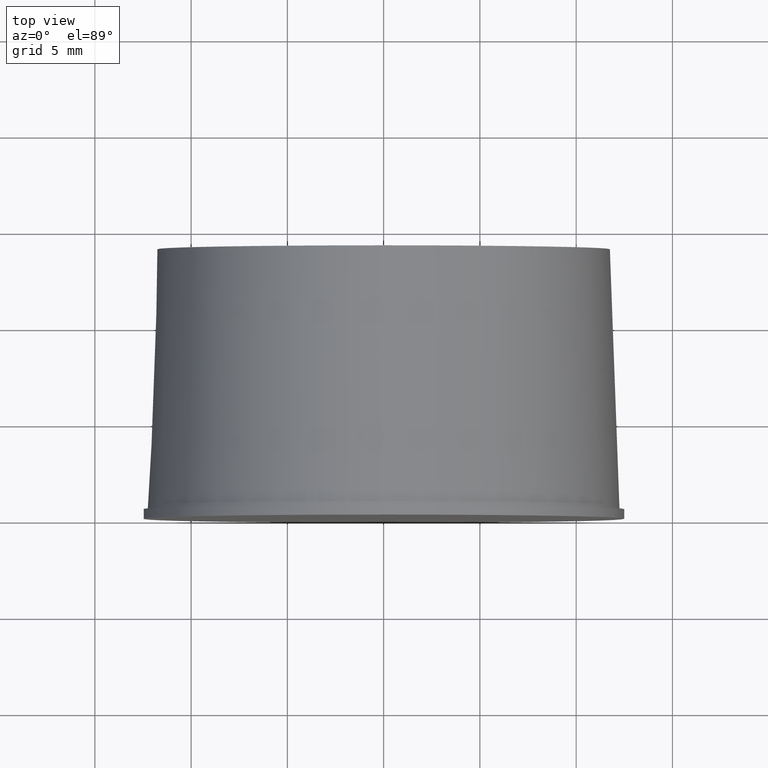
[diagram: clean part render]
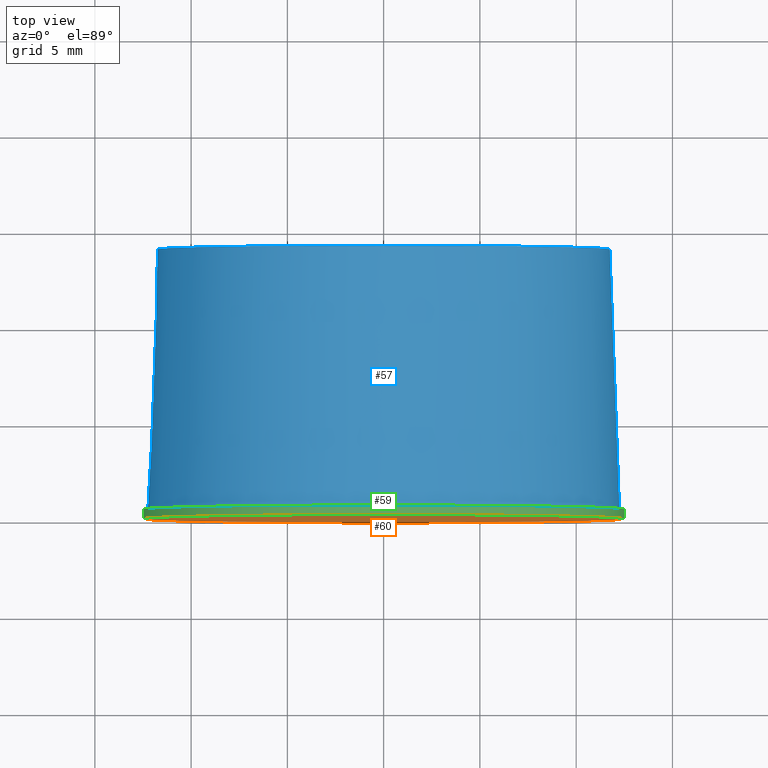
[diagram: same view with three faces highlighted in distinct colors, each labeled with its STEP entity id]
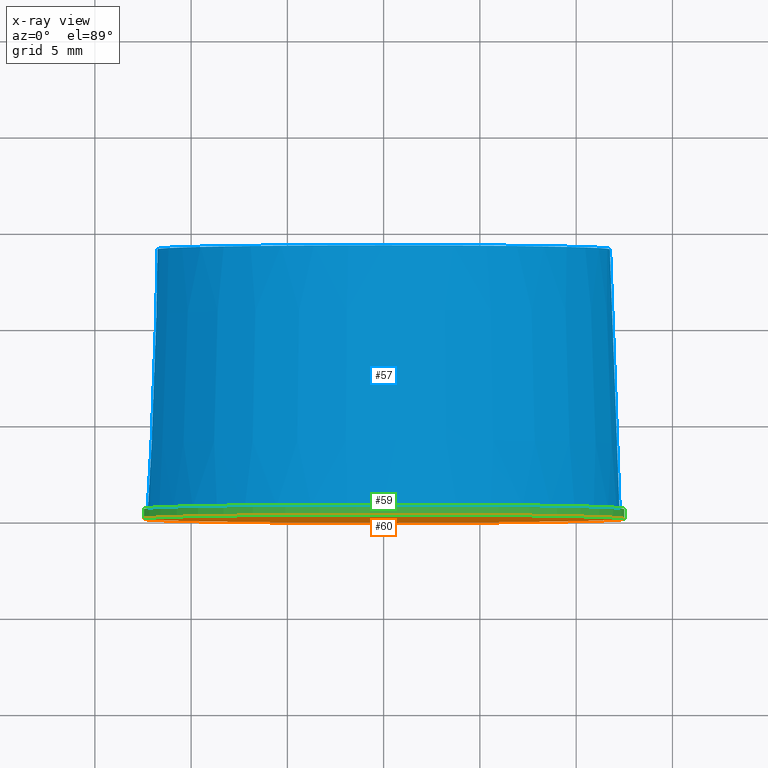
[diagram: x-ray of the same camera — body ghosted, the three highlighted faces saturated]
A machine part, top view with three faces highlighted in distinct colors.
The next image is the same camera in x-ray (body ghosted, the three faces saturated) — at least one of them is partly hidden behind the body in this view.
Their STEP definitions:

[orange] entity #60 — the highlighted planar face has unit normal (0, -1, 0).
#24=FACE_OUTER_BOUND('',#32,.T.);
#32=EDGE_LOOP('',(#52));
#36=CIRCLE('',#70,12.5);
#40=VERTEX_POINT('',#103);
#44=EDGE_CURVE('',#40,#40,#36,.T.);
#52=ORIENTED_EDGE('',*,*,#44,.T.);
#55=PLANE('',#71);
#60=ADVANCED_FACE('',(#24),#55,.T.);
#70=AXIS2_PLACEMENT_3D('',#104,#88,#89);
#71=AXIS2_PLACEMENT_3D('',#105,#90,#91);
#88=DIRECTION('center_axis',(6.12323399573679E-17,-1.,0.));
#89=DIRECTION('ref_axis',(1.,6.12323399573679E-17,0.));
#90=DIRECTION('center_axis',(6.12323399573679E-17,-1.,0.));
#91=DIRECTION('ref_axis',(0.,0.,-1.));
#103=CARTESIAN_POINT('',(12.5,0.,0.));
#104=CARTESIAN_POINT('Origin',(4.68674932081834E-32,-7.65404249467099E-16,
0.));
#105=CARTESIAN_POINT('Origin',(0.,0.,0.));

[blue] entity #57 — the highlighted conical surface has half-angle 2.121 deg.
#16=FACE_BOUND('',#27,.T.);
#19=CONICAL_SURFACE('',#65,12.,2.12109639666145);
#21=FACE_OUTER_BOUND('',#26,.T.);
#26=EDGE_LOOP('',(#46));
#27=EDGE_LOOP('',(#47));
#33=CIRCLE('',#64,11.75);
#34=CIRCLE('',#66,12.25);
#37=VERTEX_POINT('',#94);
#38=VERTEX_POINT('',#97);
#41=EDGE_CURVE('',#37,#37,#33,.T.);
#42=EDGE_CURVE('',#38,#38,#34,.T.);
#46=ORIENTED_EDGE('',*,*,#41,.T.);
#47=ORIENTED_EDGE('',*,*,#42,.F.);
#57=ADVANCED_FACE('',(#21,#16),#19,.T.);
#64=AXIS2_PLACEMENT_3D('',#95,#76,#77);
#65=AXIS2_PLACEMENT_3D('',#96,#78,#79);
#66=AXIS2_PLACEMENT_3D('',#98,#80,#81);
#76=DIRECTION('center_axis',(6.12323399573679E-17,-1.,0.));
#77=DIRECTION('ref_axis',(1.,6.12323399573679E-17,0.));
#78=DIRECTION('center_axis',(6.12323399573679E-17,-1.,0.));
#79=DIRECTION('ref_axis',(1.,0.,0.));
#80=DIRECTION('center_axis',(6.12323399573679E-17,-1.,0.));
#81=DIRECTION('ref_axis',(1.,6.12323399573679E-17,0.));
#94=CARTESIAN_POINT('',(11.75,14.,0.));
#95=CARTESIAN_POINT('Origin',(-8.57252759403151E-16,14.,0.));
#96=CARTESIAN_POINT('Origin',(-4.43934464690917E-16,7.25,0.));
#97=CARTESIAN_POINT('',(12.25,0.5,0.));
#98=CARTESIAN_POINT('Origin',(-3.06161699786839E-17,0.499999999999999,0.));

[green] entity #59 — the highlighted cylindrical surface (bore or boss wall) has radius 12.5 mm, axis along (0, -1, 0).
#15=CYLINDRICAL_SURFACE('',#69,12.5);
#18=FACE_BOUND('',#31,.T.);
#23=FACE_OUTER_BOUND('',#30,.T.);
#30=EDGE_LOOP('',(#50));
#31=EDGE_LOOP('',(#51));
#35=CIRCLE('',#68,12.5);
#36=CIRCLE('',#70,12.5);
#39=VERTEX_POINT('',#100);
#40=VERTEX_POINT('',#103);
#43=EDGE_CURVE('',#39,#39,#35,.T.);
#44=EDGE_CURVE('',#40,#40,#36,.T.);
#50=ORIENTED_EDGE('',*,*,#43,.T.);
#51=ORIENTED_EDGE('',*,*,#44,.F.);
#59=ADVANCED_FACE('',(#23,#18),#15,.T.);
#68=AXIS2_PLACEMENT_3D('',#101,#84,#85);
#69=AXIS2_PLACEMENT_3D('',#102,#86,#87);
#70=AXIS2_PLACEMENT_3D('',#104,#88,#89);
#84=DIRECTION('center_axis',(6.12323399573679E-17,-1.,0.));
#85=DIRECTION('ref_axis',(1.,6.12323399573679E-17,0.));
#86=DIRECTION('center_axis',(6.12323399573679E-17,-1.,0.));
#87=DIRECTION('ref_axis',(1.,0.,0.));
#88=DIRECTION('center_axis',(6.12323399573679E-17,-1.,0.));
#89=DIRECTION('ref_axis',(1.,6.12323399573679E-17,0.));
#100=CARTESIAN_POINT('',(12.5,0.5,0.));
#101=CARTESIAN_POINT('Origin',(-3.06161699786839E-17,0.499999999999999,
0.));
#102=CARTESIAN_POINT('Origin',(-1.53080849893419E-17,0.249999999999999,
0.));
#103=CARTESIAN_POINT('',(12.5,0.,0.));
#104=CARTESIAN_POINT('Origin',(4.68674932081834E-32,-7.65404249467099E-16,
0.));